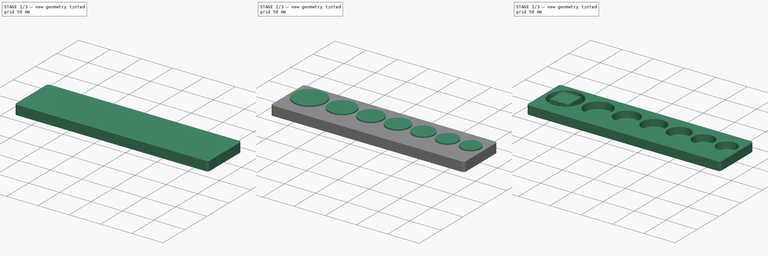
[diagram: build sequence overview — one tinted view per stage of 3, left to right]
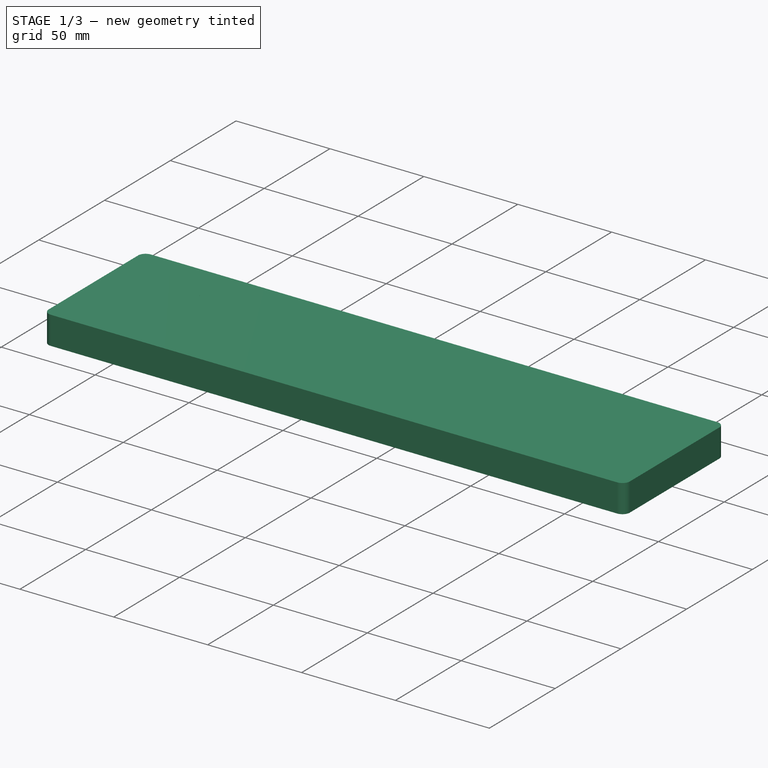
[diagram: stage 1 of 3 — iso view after this stage's code; geometry added in this stage tinted green]
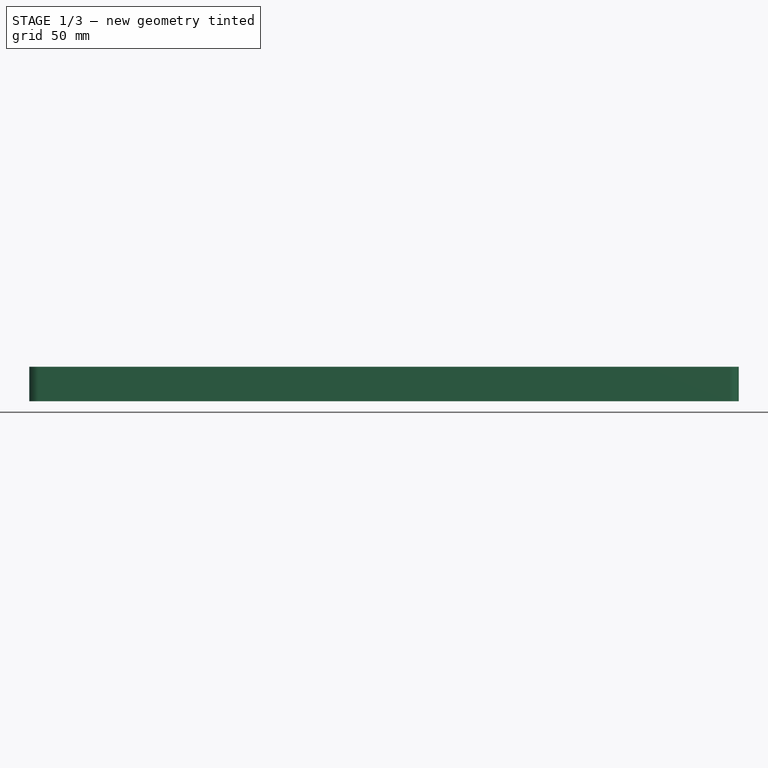
[diagram: stage 1 of 3 — front view after this stage's code; geometry added in this stage tinted green]
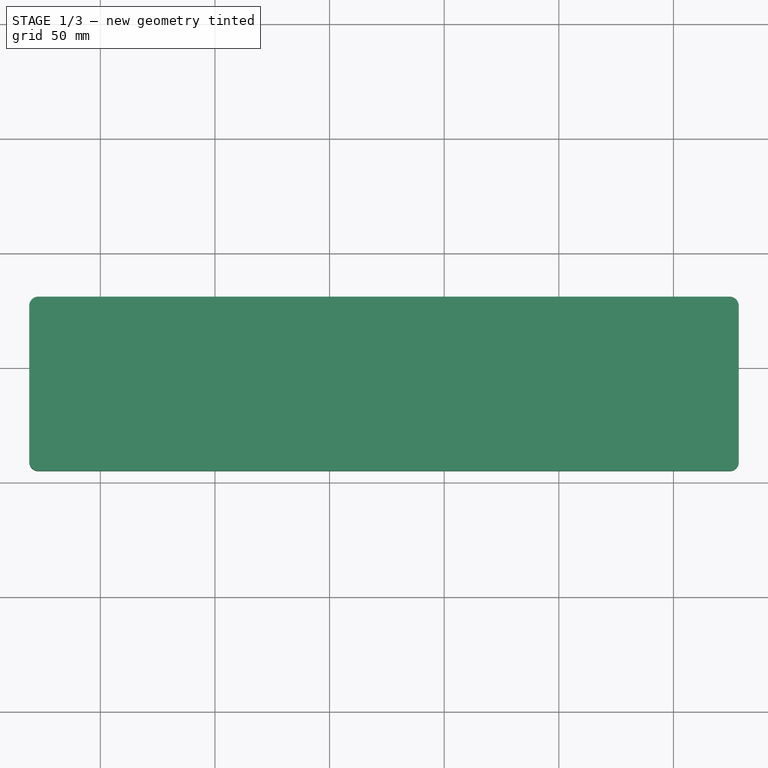
[diagram: stage 1 of 3 — top view after this stage's code; geometry added in this stage tinted green]
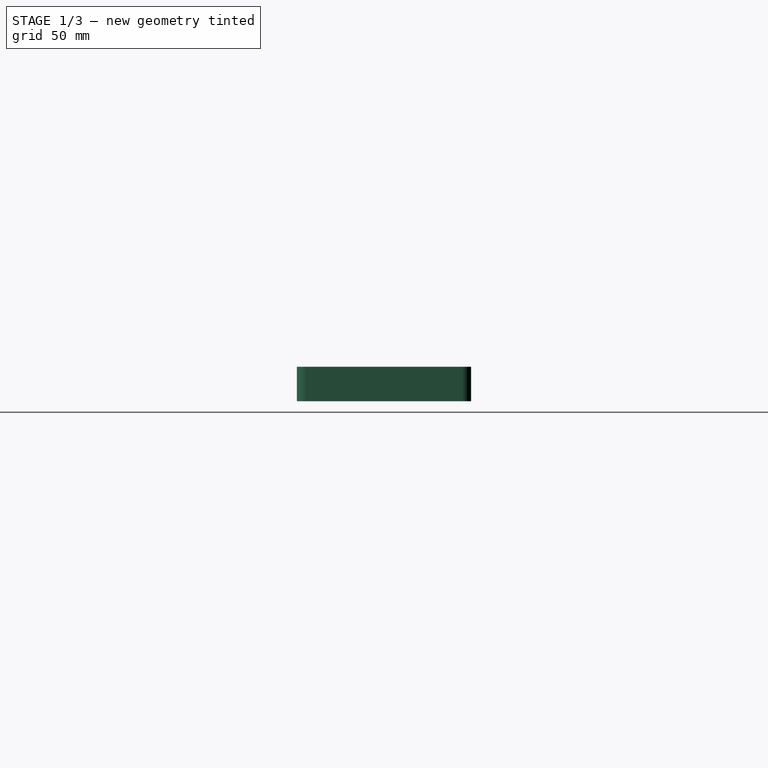
[diagram: stage 1 of 3 — right view after this stage's code; geometry added in this stage tinted green]
FCSTD DOCUMENT  (FreeCAD 0.22R38314 (Git))
Label: explore
License: All rights reserved
LicenseURL: http://en.wikipedia.org/wiki/All_rights_reserved
objects: Sketcher::SketchObject×2, Part::Extrusion×2, Spreadsheet::Sheet×1, Part::FeaturePython×1, Part::Cut×1, Part::Chamfer×1, Part::Box×1
note: 8 computed .brp shape members not serialized (recipe doc carries the construction recipe); baked Part::Feature solids carry a one-line shape summary decoded from their .brp

FEATURE [Part::Extrusion] Extrude001  label="box extrusion"
  Base = -> Sketch001
  Dir = (0,0,1)
  DirMode = 2
  FaceMakerClass = Part::FaceMakerBullseye
  FaceMakerMode = 3
  LengthFwd = 15
  LengthRev = 0
  Solid = true
  Symmetric = false
  expr: LengthFwd = <<q>>.box_height
FEATURE [Part::Box] Box  label="Cube"
  AttacherType = Attacher::AttachEngine3D
  Height = 15
  Length = 30
  Placement = pos=(-15,-15,0) rot=(0,0,1;0rad)
  Width = 30
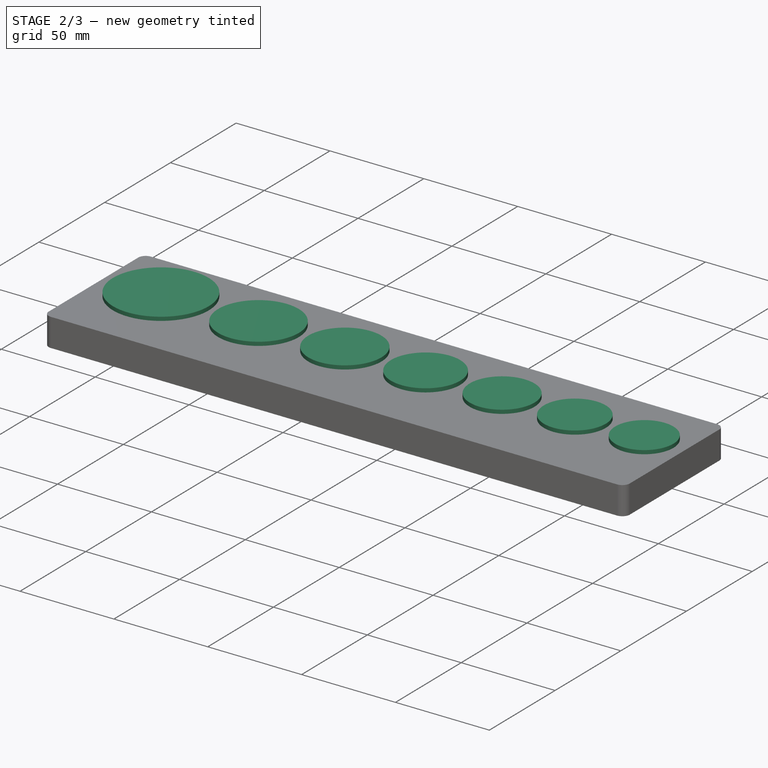
[diagram: stage 2 of 3 — iso view after this stage's code; geometry added in this stage tinted green]
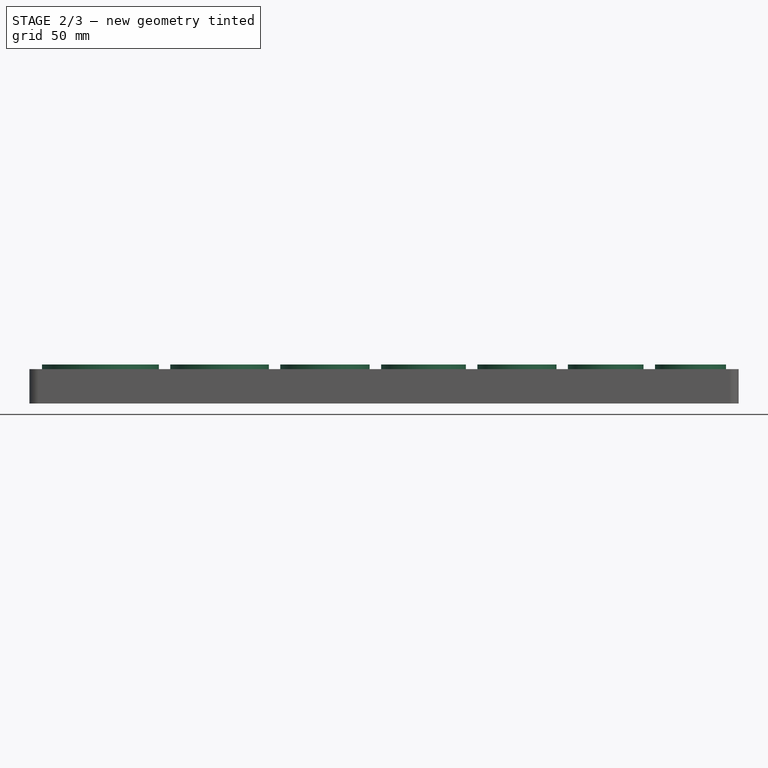
[diagram: stage 2 of 3 — front view after this stage's code; geometry added in this stage tinted green]
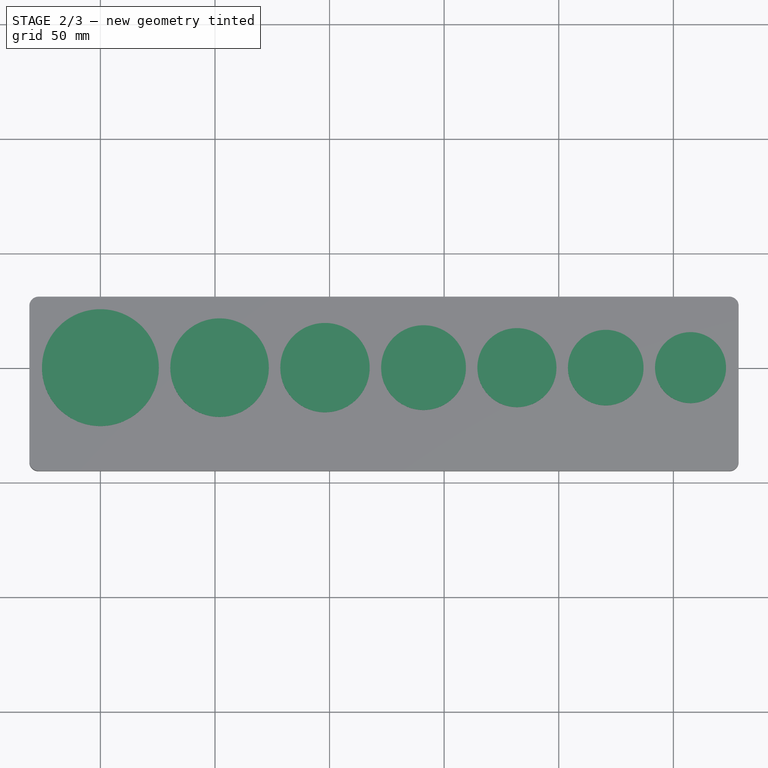
[diagram: stage 2 of 3 — top view after this stage's code; geometry added in this stage tinted green]
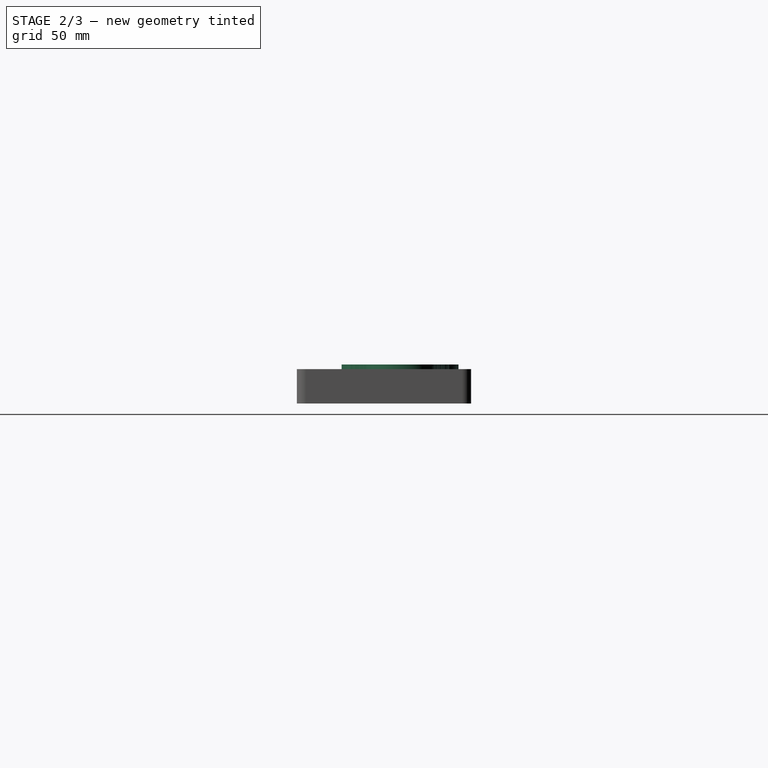
[diagram: stage 2 of 3 — right view after this stage's code; geometry added in this stage tinted green]
FEATURE [Spreadsheet::Sheet] Spreadsheet  label="q"
  cells = A1='size; B1='offsets; C1='packed offset and size; D1='title; F1='spacing; G1(spacing)=6; A2=50; B2=0; C2==<<%s;>> % B2 + <<%s>> % (A2 + socket_margin); D2='1-1/2  ; F2='length; G2(length)==sum(A2:A18) + (items + 1) * spacing; A3=42; B3==A2 / 2 + A3 / 2 + B2 + spacing; C3==<<%s;>> % B3 + <<%s>> % (A3 + socket_margin); D3='1-1/4  ; F3='depth; G3(depth)==max(A2:A18) + 2 * spacing + text_height; A4=38; B4==A3 / 2 + A4 / 2 + B3 + spacing; C4==<<%s;>> % B4 + <<%s>> % (A4 + socket_margin); D4='1-1/8  ; F4='left offset; G4(left_offset)==A2 / 2 + spacing; A5=36; B5==A4 / 2 + A5 / 2 + B4 + spacing; C5==<<%s;>> % B5 + <<%s>> % (A5 + socket_margin); D5='1/1-16 ; A6=33.5; B6==A5 / 2 + A6 / 2 + B5 + spacing; C6==<<%s;>> % B6 + <<%s>> % (A6 + socket_margin); D6='1      ; F6='text height; G6(text_height)=14; A7=32; B7==A6 / 2 + A7 / 2 + B6 + spacing; C7==<<%s;>> % B7 + <<%s>> % (A7 + socket_margin); D7='15/16  ; F7='radius; G7(radius)=4; A8=30; B8==A7 / 2 + A8 / 2 + B7 + spacing; C8==<<%s;>> % B8 + <<%s>> % (A8 + socket_margin); D8='7/8    ; F8='box height; G8(box_height)=15; F9='socket depth; G9(socket_depth)==box_height; F10='socket floor; G10(socket_floor)=2; F11='socket margin; G11(socket_margin)=1; F13='items; G13(items)==count(A2:A18); A21='large 1/2 inch; A22=50; B22=0; C22==<<%s;>> % B22 + <<%s>> % (A22 + socket_margin); D22='1-1/2  ; A23=42; B23==A22 / 2 + A23 / 2 + B22 + spacing; C23==<<%s;>> % B23 + <<%s>> % (A23 + socket_margin); D23='1-1/4  ; A24=38; B24==A23 / 2 + A24 / 2 + B23 + spacing; C24==<<%s;>> % B24 + <<%s>> % (A24 + socket_margin); D24='1-1/8  ; A25=36; B25==A24 / 2 + A25 / 2 + B24 + spacing; C25==<<%s;>> % B25 + <<%s>> % (A25 + socket_margin); D25='1/1-16 ; A26=33.5; B26==A25 / 2 + A26 / 2 + B25 + spacing; C26==<<%s;>> % B26 + <<%s>> % (A26 + socket_margin); D26='1      ; A27=32; B27==A26 / 2 + A27 / 2 + B26 + spacing; C27==<<%s;>> % B27 + <<%s>> % (A27 + socket_margin); D27='15/16  ; A28=30; B28==A27 / 2 + A28 / 2 + B27 + spacing; C28==<<%s;>> % B28 + <<%s>> % (A28 + socket_margin); D28='7/8    ; A31='small 1/2 inch; A32=28.5; B32=0; C32==<<%s;>> % B32 + <<%s>> % (A32 + socket_margin); D32='13/16  ; A33=27.5; B33==A32 / 2 + A33 / 2 + B32 + spacing; C33==<<%s;>> % B33 + <<%s>> % (A33 + socket_margin); D33='25/32  ; A34=26.5; B34==A33 / 2 + A34 / 2 + B33 + spacing; C34==<<%s;>> % B34 + <<%s>> % (A34 + socket_margin); D34='3/4    ; A35=24.5; B35==A34 / 2 + A35 / 2 + B34 + spacing; C35==<<%s;>> % B35 + <<%s>> % (A35 + socket_margin); D35='11/16  ; A36=23; B36==A35 / 2 + A36 / 2 + B35 + spacing; C36==<<%s;>> % B36 + <<%s>> % (A36 + socket_margin); D36='21/32  ; A37=22; B37==A36 / 2 + A37 / 2 + B36 + spacing; C37==<<%s;>> % B37 + <<%s>> % (A37 + socket_margin); D37='5/8    ; A38=22; B38==A37 / 2 + A38 / 2 + B37 + spacing; C38==<<%s;>> % B38 + <<%s>> % (A38 + socket_margin); D38='19/32  ; A39=22; B39==A38 / 2 + A39 / 2 + B38 + spacing; C39==<<%s;>> % B39 + <<%s>> % (A39 + socket_margin); D39='9/16   ; A40=22; B40==A39 / 2 + A40 / 2 + B39 + spacing; C40==<<%s;>> % B40 + <<%s>> % (A40 + socket_margin); D40='1/2    ; A41=22; B41==A40 / 2 + A41 / 2 + B40 + spacing; C41==<<%s;>> % B41 + <<%s>> % (A41 + socket_margin); D41='7/16   
FEATURE [Sketcher::SketchObject] Sketch001  label="box"
  FullyConstrained = true
  expr: Constraints[27] = <<q>>.radius
  expr: Constraints[3] = <<q>>.length
  expr: Constraints[4] = <<q>>.left_offset
  expr: Constraints[6] = <<q>>.left_offset
  expr: Constraints[7] = <<q>>.depth
  sketch-geometry (12):
    g0: LineSegment StartX=-31 StartY=27 StartZ=0 EndX=-31 EndY=-41 EndZ=0
    g1: LineSegment StartX=-27 StartY=-45 StartZ=0 EndX=274.5 EndY=-45 EndZ=0
    g2: LineSegment StartX=278.5 StartY=-41 StartZ=0 EndX=278.5 EndY=27 EndZ=0
    g3: LineSegment StartX=274.5 StartY=31 StartZ=0 EndX=-27 EndY=31 EndZ=0
    g4: ArcOfCircle CenterX=274.5 CenterY=27 CenterZ=0 NormalX=0 NormalY=0 NormalZ=1 AngleXU=0 Radius=4 StartAngle=0 EndAngle=1.5708
    g5: GeomPoint X=278.5 Y=31 Z=0
    g6: ArcOfCircle CenterX=274.5 CenterY=-41 CenterZ=0 NormalX=0 NormalY=0 NormalZ=1 AngleXU=0 Radius=4 StartAngle=4.71239 EndAngle=6.28319
    g7: GeomPoint X=278.5 Y=-45 Z=0
    g8: ArcOfCircle CenterX=-27 CenterY=-41 CenterZ=0 NormalX=0 NormalY=0 NormalZ=1 AngleXU=0 Radius=4 StartAngle=3.14159 EndAngle=4.71239
    g9: GeomPoint X=-31 Y=-45 Z=0
    g10: ArcOfCircle CenterX=-27 CenterY=27 CenterZ=0 NormalX=0 NormalY=0 NormalZ=1 AngleXU=0 Radius=4 StartAngle=1.5708 EndAngle=3.14159
    g11: GeomPoint X=-31 Y=31 Z=0
  constraints (28):
    c: Vertical(g2)
    c: Horizontal(g1)
    c: Horizontal(g3)
    c: Distance(g11,g5) = 309.5
    c: DistanceX(g11,g-1) = 31
    c: Vertical(g0)
    c: DistanceY(g-1,g11) = 31
    c: DistanceY(g9,g11) = 76
    c: PointOnObject(g5,g3)
    c: PointOnObject(g5,g2)
    c: Tangent(g3,g4) = -1.5708
    c: Tangent(g2,g4) = -1.5708
    c: PointOnObject(g7,g1)
    c: PointOnObject(g7,g2)
    c: Tangent(g1,g6) = -1.5708
    c: Tangent(g2,g6) = -1.5708
    c: PointOnObject(g9,g1)
    c: PointOnObject(g9,g0)
    c: Tangent(g1,g8) = -1.5708
    c: Tangent(g0,g8) = -1.5708
    c: PointOnObject(g11,g0)
    c: PointOnObject(g11,g3)
    c: Tangent(g0,g10) = -1.5708
    c: Tangent(g3,g10) = -1.5708
    c: Equal(g4,g6)
    c: Equal(g4,g8)
    c: Equal(g4,g10)
    c: Radius(g4) = 4
FEATURE [Sketcher::SketchObject] Sketch  label="socket"
  FullyConstrained = true
  Placement = pos=(0,0,2) rot=(0,0,1;0rad)
  expr: .Placement.Base.z = <<q>>.socket_floor
  sketch-geometry (1):
    g0: Circle CenterX=0 CenterY=0 CenterZ=0 NormalX=0 NormalY=0 NormalZ=1 AngleXU=0 Radius=11.5
  constraints (2):
    c: Coincident(g0,g-1)
    c: Diameter(g0) = 23  'SocketDiameter'
FEATURE [Part::Extrusion] Extrude  label="socket template extrusion"
  Base = -> Sketch
  Dir = (0,0,1)
  DirMode = 2
  FaceMakerClass = Part::FaceMakerBullseye
  FaceMakerMode = 3
  LengthFwd = 15
  LengthRev = 0
  Solid = true
  Symmetric = false
  expr: LengthFwd = <<q>>.box_height
FEATURE [Part::FeaturePython] ParaSeries  label="socket extrusion"  # WARN: FeaturePython — macro-defined, semantics opaque (R4)
  Alignment = 0
  CellStart = C2
  Count = 7
  DistributionLaw = 0
  EndInclusive = true
  ExposePlacement = false
  GeneratorMode = 0
  MarkerShape = 1
  MarkerSize = 0
  NumElements = 0
  Object = -> Extrude
  ParameterRef = Sketch.Placement.Base.x;Sketch.Constraints.SocketDiameter
  ParameterType = 0
  Recomputing = 0
  SpanEnd = 7
  SpanStart = 1
  SpreadsheetLink = -> Spreadsheet
  Step = 1
  Type = lattice2ParaSeries.LatticeParaSeries
  VSGVersion = 1
  Values = 0;51 | 52;43 | 98;39 | 141;37 | 181.75;34.5 | 220.5;33 | 257.5;31
  ValuesSource = 1
  isLattice = 0
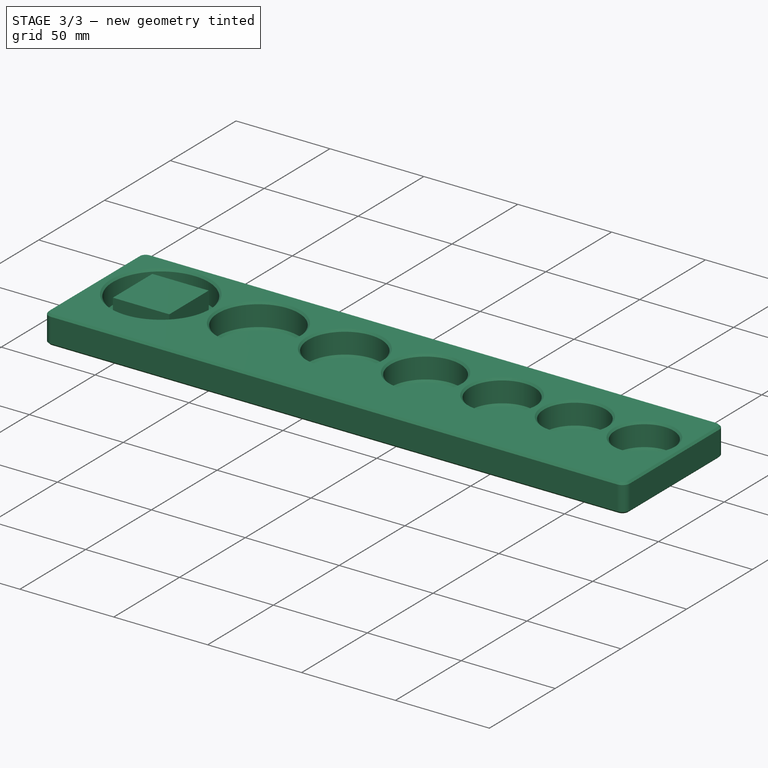
[diagram: stage 3 of 3 — iso view after this stage's code; geometry added in this stage tinted green]
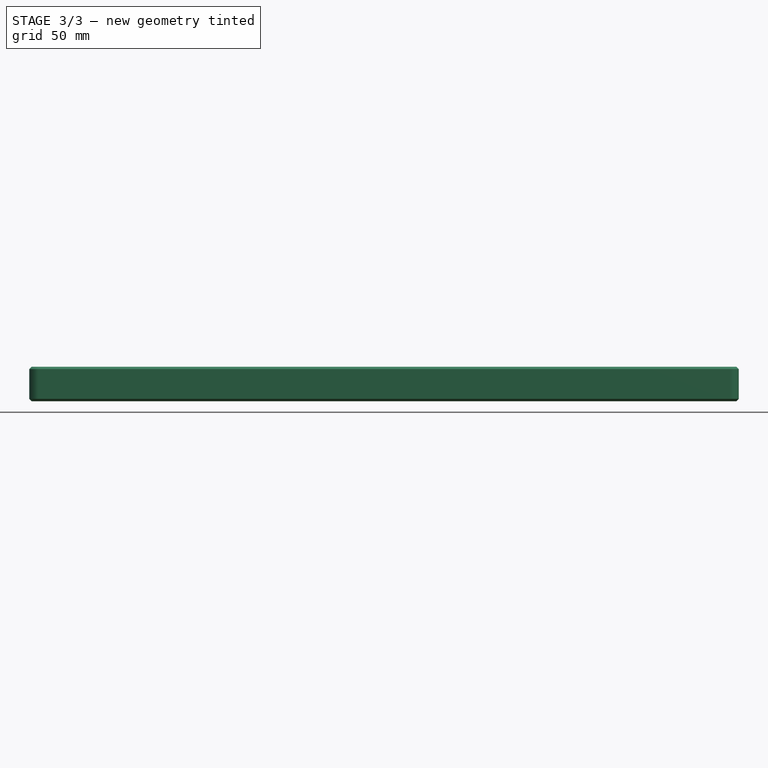
[diagram: stage 3 of 3 — front view after this stage's code; geometry added in this stage tinted green]
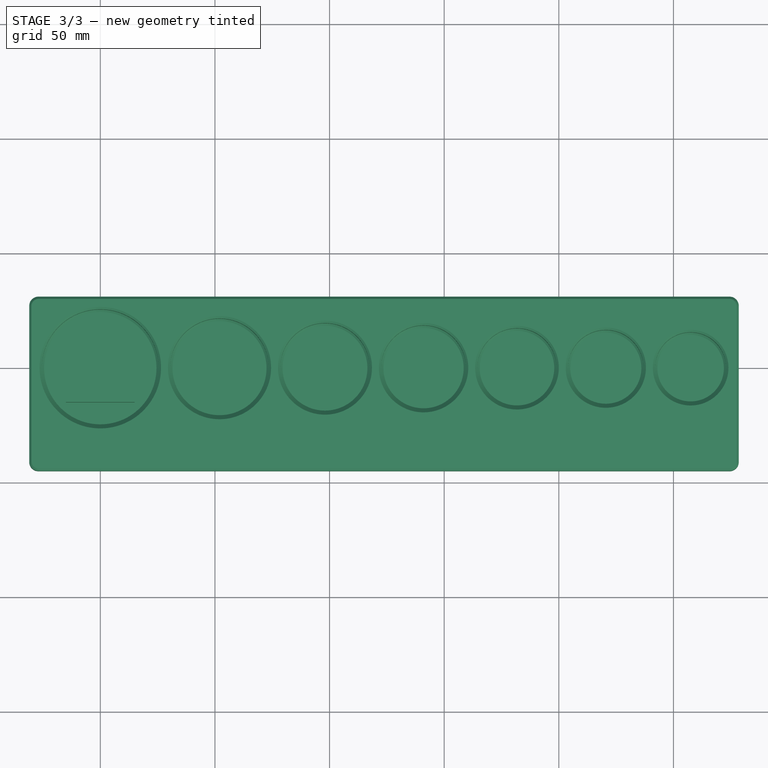
[diagram: stage 3 of 3 — top view after this stage's code; geometry added in this stage tinted green]
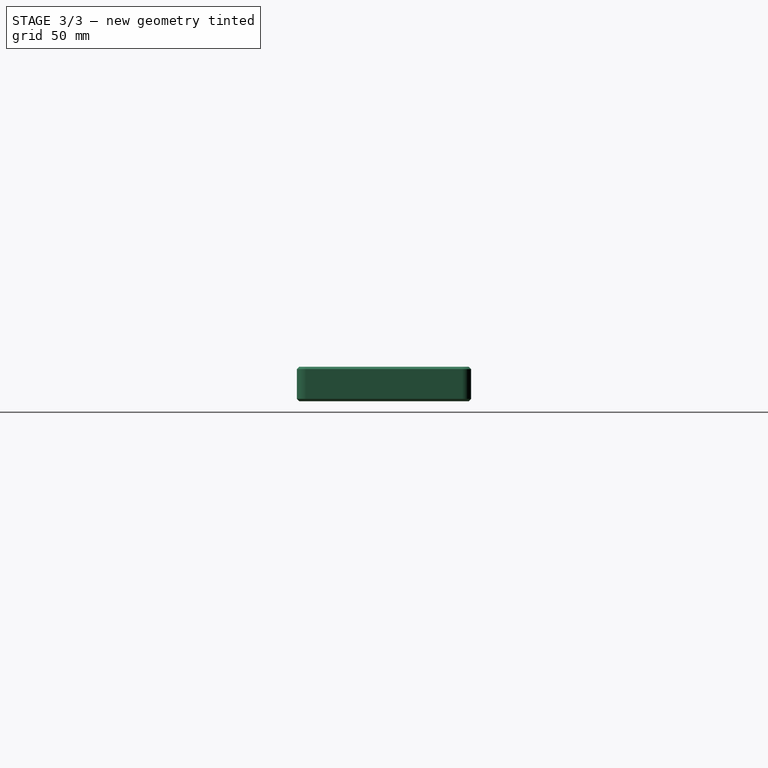
[diagram: stage 3 of 3 — right view after this stage's code; geometry added in this stage tinted green]
FEATURE [Part::Cut] Cut
  Base = -> Extrude001
  Tool = -> ParaSeries
FEATURE [Part::Chamfer] Chamfer
  Base = -> Cut
  EdgeLinks = -> Cut [Edge3,Edge4,Edge6,Edge7,Edge9,Edge10,Edge11,Edge12,Edge13,Edge14,Edge15,Edge16,Edge17,Edge18,Edge19,Edge20,Edge21,?Edge22,?Edge23,?Edge24,?Edge25,?Edge26,?Edge27,Edge32,?Edge34,?Edge36,?Edge38,?Edge40,?Edge42,?Edge44]
  Edges = 30 edges r=1: [Edge3,Edge4,Edge6,Edge7,Edge9,Edge10,Edge11,Edge12,Edge13,Edge14,Edge15,Edge16,Edge17,Edge18,Edge19,Edge20,Edge21,Edge22,Edge23,Edge24,Edge25,Edge26,Edge27,Edge32,Edge34,Edge36,Edge38,Edge40,Edge42,Edge44]
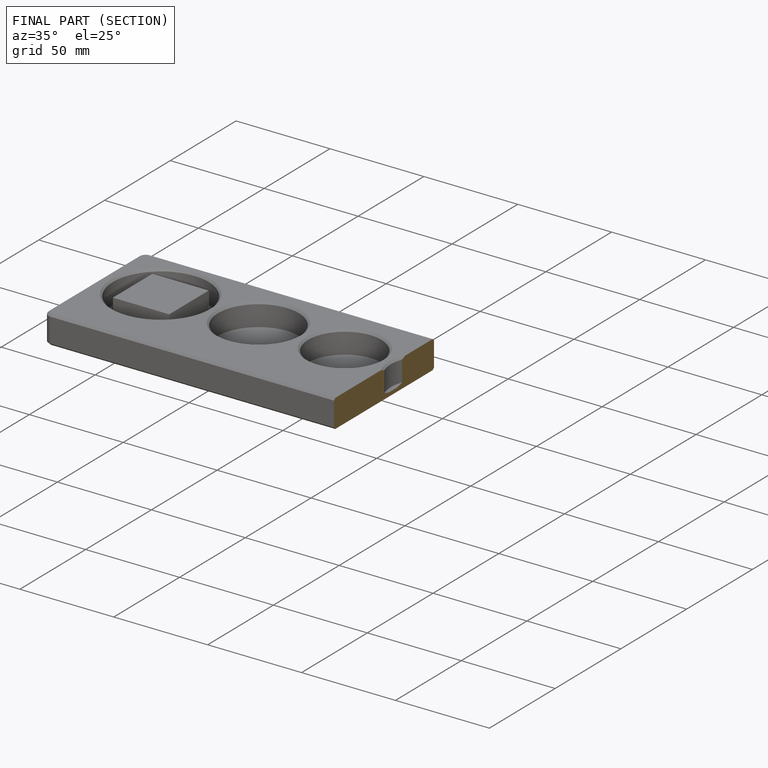
[diagram: finished part — half-section view (interior)]
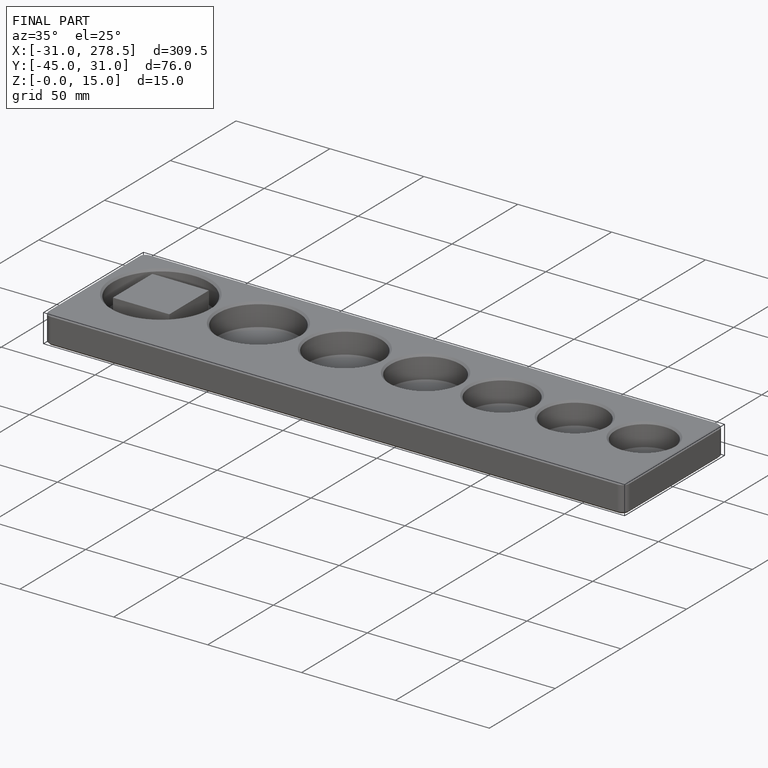
[diagram: finished part — iso view with bounding-box wireframe]
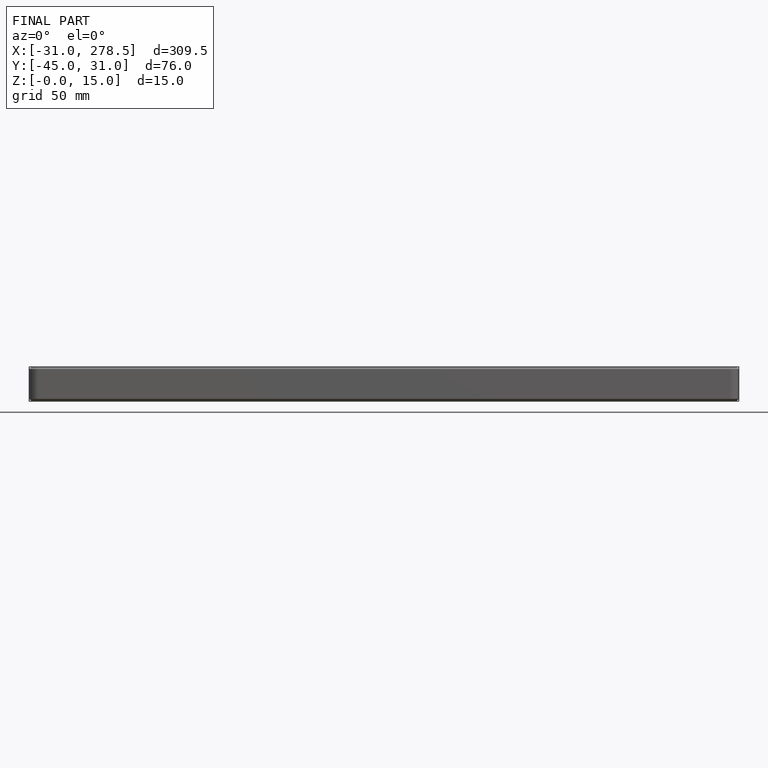
[diagram: finished part — front view with bounding-box wireframe]
